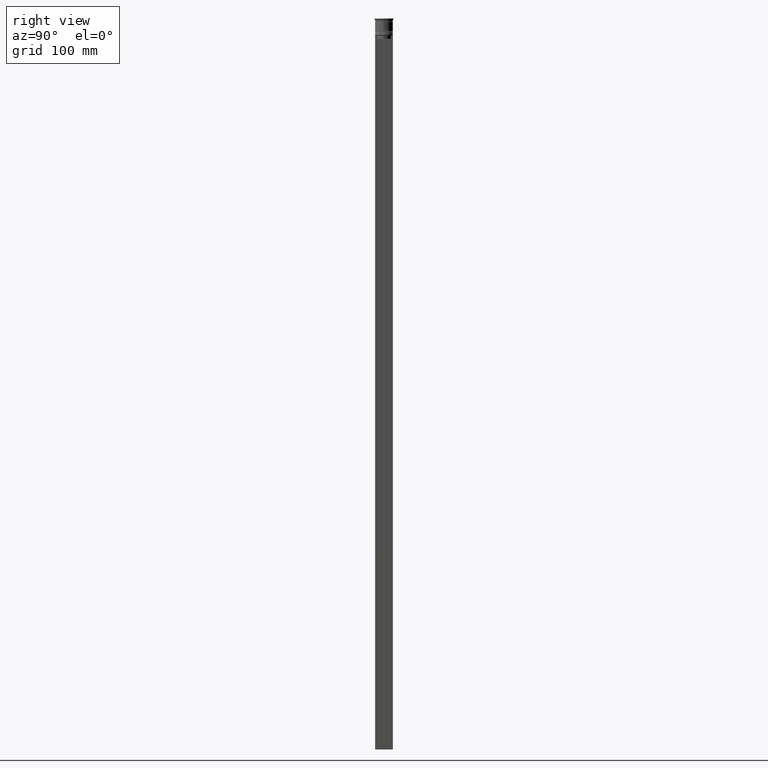
[diagram: clean part render]
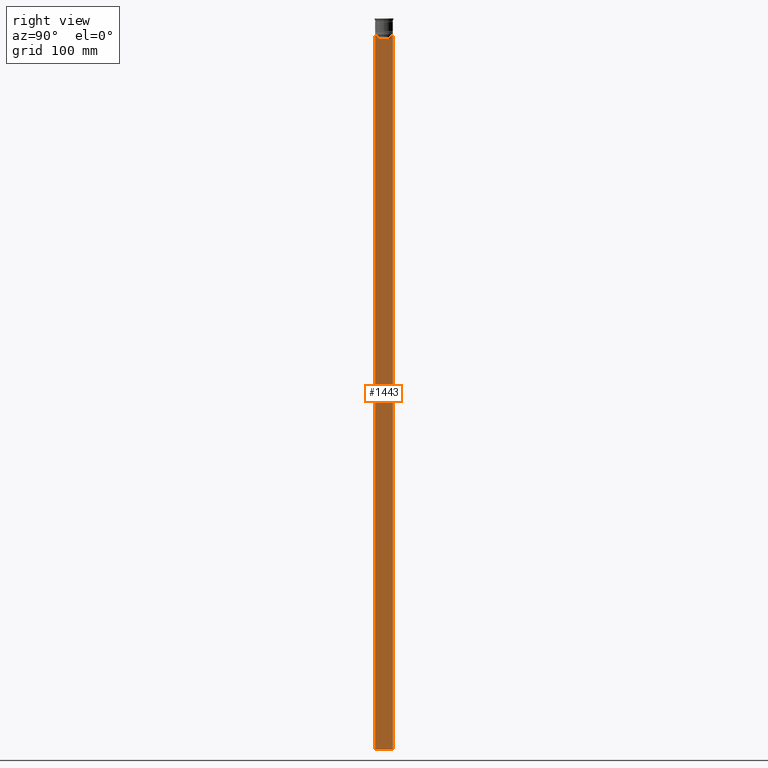
[diagram: same view with one face highlighted and labeled with its STEP entity id]
A machine part, right view. The second image highlights one B-rep face of the part: STEP entity #1443.
In plain terms, the highlighted planar face has unit normal (-1, 0, 0).
Its self-contained STEP definition (entity closure, byte-faithful):
#17 = VERTEX_POINT ( 'NONE', #523 ) ;
#36 = CARTESIAN_POINT ( 'NONE',  ( 0.5000000000000000000, -6.046019991840948293, -14.33335703538585726 ) ) ;
#78 = EDGE_CURVE ( 'NONE', #1040, #1679, #180, .T. ) ;
#89 = CARTESIAN_POINT ( 'NONE',  ( 0.5000000000000000000, 7.383088784512886527, -14.00000000000000178 ) ) ;
#110 = EDGE_CURVE ( 'NONE', #383, #2054, #2491, .T. ) ;
#126 = CARTESIAN_POINT ( 'NONE',  ( 0.5000000000000000000, -7.499999999999999112, -14.00000000000000178 ) ) ;
#174 = VERTEX_POINT ( 'NONE', #2133 ) ;
#176 = LINE ( 'NONE', #933, #2385 ) ;
#180 = B_SPLINE_CURVE_WITH_KNOTS ( 'NONE', 3,
 ( #587, #36, #2303, #559 ),
 .UNSPECIFIED., .F., .F.,
 ( 4, 4 ),
 ( 0.02765270321082434479, 0.02836198271238431559 ),
 .UNSPECIFIED. ) ;
#231 = EDGE_CURVE ( 'NONE', #2128, #2054, #1404, .T. ) ;
#235 = DIRECTION ( 'NONE',  ( -1.000000000000000000, 0.000000000000000000, 0.000000000000000000 ) ) ;
#259 = AXIS2_PLACEMENT_3D ( 'NONE', #1403, #235, #1455 ) ;
#311 = DIRECTION ( 'NONE',  ( 0.000000000000000000, -1.000000000000000000, 0.000000000000000000 ) ) ;
#327 = VECTOR ( 'NONE', #831, 1000.000000000000000 ) ;
#345 = EDGE_CURVE ( 'NONE', #1679, #2166, #654, .T. ) ;
#347 = ORIENTED_EDGE ( 'NONE', *, *, #1887, .T. ) ;
#353 = ORIENTED_EDGE ( 'NONE', *, *, #732, .T. ) ;
#359 = VERTEX_POINT ( 'NONE', #89 ) ;
#383 = VERTEX_POINT ( 'NONE', #1651 ) ;
#400 = ORIENTED_EDGE ( 'NONE', *, *, #1500, .T. ) ;
#433 = DIRECTION ( 'NONE',  ( 0.000000000000000000, 0.000000000000000000, -1.000000000000000000 ) ) ;
#441 = ORIENTED_EDGE ( 'NONE', *, *, #657, .T. ) ;
#452 = ORIENTED_EDGE ( 'NONE', *, *, #1108, .T. ) ;
#519 = EDGE_CURVE ( 'NONE', #1283, #17, #176, .T. ) ;
#523 = CARTESIAN_POINT ( 'NONE',  ( 0.5000000000000000000, -5.878775382679625849, -17.00000000000000000 ) ) ;
#559 = CARTESIAN_POINT ( 'NONE',  ( 0.5000000000000000000, -6.380438856379706536, -14.00000000000000178 ) ) ;
#587 = CARTESIAN_POINT ( 'NONE',  ( 0.5000000000000000000, -5.878775382679625849, -14.50000000000000000 ) ) ;
#613 = CARTESIAN_POINT ( 'NONE',  ( 0.5000000000000000000, -7.499999999999999112, -14.00000000000000178 ) ) ;
#654 = LINE ( 'NONE', #1050, #2107 ) ;
#657 = EDGE_CURVE ( 'NONE', #17, #1040, #1239, .T. ) ;
#669 = ORIENTED_EDGE ( 'NONE', *, *, #1127, .T. ) ;
#692 = VERTEX_POINT ( 'NONE', #1812 ) ;
#700 = CARTESIAN_POINT ( 'NONE',  ( 0.5000000000000000000, -7.499999999999999112, -14.00000000000000178 ) ) ;
#732 = EDGE_CURVE ( 'NONE', #2128, #359, #1289, .T. ) ;
#808 = VECTOR ( 'NONE', #433, 1000.000000000000000 ) ;
#813 = CARTESIAN_POINT ( 'NONE',  ( 0.5000000000000000000, 7.500000000000002665, 1.033296378372908997 ) ) ;
#831 = DIRECTION ( 'NONE',  ( -0.000000000000000000, -0.000000000000000000, 1.000000000000000000 ) ) ;
#872 = DIRECTION ( 'NONE',  ( 0.000000000000000000, 0.000000000000000000, -1.000000000000000000 ) ) ;
#923 = DIRECTION ( 'NONE',  ( 0.000000000000000000, -1.000000000000000000, 0.000000000000000000 ) ) ;
#933 = CARTESIAN_POINT ( 'NONE',  ( 0.5000000000000000000, 5.899999999999998579, -17.00000000000000000 ) ) ;
#993 = B_SPLINE_CURVE_WITH_KNOTS ( 'NONE', 3,
 ( #2210, #1048, #1434, #2200 ),
 .UNSPECIFIED., .F., .F.,
 ( 4, 4 ),
 ( 0.01087727669788152163, 0.01158556069794289788 ),
 .UNSPECIFIED. ) ;
#1037 = DIRECTION ( 'NONE',  ( 0.000000000000000000, -1.000000000000000000, 0.000000000000000000 ) ) ;
#1040 = VERTEX_POINT ( 'NONE', #1610 ) ;
#1048 = CARTESIAN_POINT ( 'NONE',  ( 0.5000000000000000000, 6.213239387491007015, -14.16668843563492430 ) ) ;
#1050 = CARTESIAN_POINT ( 'NONE',  ( 0.5000000000000000000, -7.499999999999999112, -14.00000000000000178 ) ) ;
#1059 = LINE ( 'NONE', #1835, #2270 ) ;
#1108 = EDGE_CURVE ( 'NONE', #174, #2066, #993, .T. ) ;
#1127 = EDGE_CURVE ( 'NONE', #2066, #1283, #1059, .T. ) ;
#1146 = ORIENTED_EDGE ( 'NONE', *, *, #1160, .T. ) ;
#1160 = EDGE_CURVE ( 'NONE', #2166, #692, #1697, .T. ) ;
#1174 = DIRECTION ( 'NONE',  ( 0.000000000000000000, 1.000000000000000000, 0.000000000000000000 ) ) ;
#1239 = LINE ( 'NONE', #2368, #327 ) ;
#1283 = VERTEX_POINT ( 'NONE', #1734 ) ;
#1289 = LINE ( 'NONE', #126, #2151 ) ;
#1296 = CARTESIAN_POINT ( 'NONE',  ( 0.5000000000000000000, 5.878775382679625849, -14.50000000000000000 ) ) ;
#1301 = DIRECTION ( 'NONE',  ( 0.000000000000000000, -1.000000000000000000, 0.000000000000000000 ) ) ;
#1306 = VECTOR ( 'NONE', #2366, 1000.000000000000000 ) ;
#1343 = VECTOR ( 'NONE', #1174, 1000.000000000000000 ) ;
#1403 = CARTESIAN_POINT ( 'NONE',  ( 0.5000000000000000000, -7.499999999999999112, 1.033296378372908997 ) ) ;
#1404 = LINE ( 'NONE', #813, #808 ) ;
#1434 = CARTESIAN_POINT ( 'NONE',  ( 0.5000000000000000000, 6.046020074006152711, -14.33335695351623151 ) ) ;
#1443 = ADVANCED_FACE ( 'NONE', ( #1632 ), #1981, .F. ) ;
#1444 = CARTESIAN_POINT ( 'NONE',  ( 0.5000000000000000000, -7.499999999999999112, 1.033296378372908997 ) ) ;
#1455 = DIRECTION ( 'NONE',  ( 0.000000000000000000, 0.000000000000000000, 1.000000000000000000 ) ) ;
#1500 = EDGE_CURVE ( 'NONE', #692, #383, #1795, .T. ) ;
#1603 = ORIENTED_EDGE ( 'NONE', *, *, #345, .T. ) ;
#1610 = CARTESIAN_POINT ( 'NONE',  ( 0.5000000000000000000, -5.878775382679625849, -14.50000000000000000 ) ) ;
#1623 = DIRECTION ( 'NONE',  ( 0.000000000000000000, -1.000000000000000000, 0.000000000000000000 ) ) ;
#1632 = FACE_OUTER_BOUND ( 'NONE', #2287, .T. ) ;
#1651 = CARTESIAN_POINT ( 'NONE',  ( 0.5000000000000000000, -7.499999999999999112, -614.0000000000000000 ) ) ;
#1679 = VERTEX_POINT ( 'NONE', #2277 ) ;
#1697 = LINE ( 'NONE', #700, #1992 ) ;
#1717 = ORIENTED_EDGE ( 'NONE', *, *, #78, .T. ) ;
#1721 = ORIENTED_EDGE ( 'NONE', *, *, #231, .F. ) ;
#1734 = CARTESIAN_POINT ( 'NONE',  ( 0.5000000000000000000, 5.878775382679625849, -17.00000000000000000 ) ) ;
#1775 = ORIENTED_EDGE ( 'NONE', *, *, #519, .T. ) ;
#1795 = LINE ( 'NONE', #1444, #1306 ) ;
#1805 = ORIENTED_EDGE ( 'NONE', *, *, #110, .T. ) ;
#1812 = CARTESIAN_POINT ( 'NONE',  ( 0.5000000000000000000, -7.499999999999999112, -14.00000000000000178 ) ) ;
#1835 = CARTESIAN_POINT ( 'NONE',  ( 0.5000000000000000000, 5.878775382679625849, 0.000000000000000000 ) ) ;
#1854 = CARTESIAN_POINT ( 'NONE',  ( 0.5000000000000000000, 7.500000000000002665, -14.00000000000000178 ) ) ;
#1878 = VECTOR ( 'NONE', #1037, 1000.000000000000000 ) ;
#1887 = EDGE_CURVE ( 'NONE', #359, #174, #2395, .T. ) ;
#1981 = PLANE ( 'NONE',  #259 ) ;
#1992 = VECTOR ( 'NONE', #311, 1000.000000000000000 ) ;
#2054 = VERTEX_POINT ( 'NONE', #2408 ) ;
#2066 = VERTEX_POINT ( 'NONE', #1296 ) ;
#2085 = CARTESIAN_POINT ( 'NONE',  ( 0.5000000000000000000, -7.383088784512886527, -14.00000000000000178 ) ) ;
#2106 = CARTESIAN_POINT ( 'NONE',  ( 0.5000000000000000000, -7.499999999999999112, -614.0000000000000000 ) ) ;
#2107 = VECTOR ( 'NONE', #1623, 1000.000000000000000 ) ;
#2128 = VERTEX_POINT ( 'NONE', #1854 ) ;
#2133 = CARTESIAN_POINT ( 'NONE',  ( 0.5000000000000000000, 6.380438856379706536, -14.00000000000000178 ) ) ;
#2151 = VECTOR ( 'NONE', #923, 1000.000000000000000 ) ;
#2166 = VERTEX_POINT ( 'NONE', #2085 ) ;
#2200 = CARTESIAN_POINT ( 'NONE',  ( 0.5000000000000000000, 5.878775382679625849, -14.50000000000000000 ) ) ;
#2210 = CARTESIAN_POINT ( 'NONE',  ( 0.5000000000000000000, 6.380438856379706536, -14.00000000000000178 ) ) ;
#2270 = VECTOR ( 'NONE', #872, 1000.000000000000000 ) ;
#2277 = CARTESIAN_POINT ( 'NONE',  ( 0.5000000000000000000, -6.380438856379706536, -14.00000000000000178 ) ) ;
#2287 = EDGE_LOOP ( 'NONE', ( #347, #452, #669, #1775, #441, #1717, #1603, #1146, #400, #1805, #1721, #353 ) ) ;
#2303 = CARTESIAN_POINT ( 'NONE',  ( 0.5000000000000000000, -6.213239311785844876, -14.16668851110870087 ) ) ;
#2366 = DIRECTION ( 'NONE',  ( 0.000000000000000000, 0.000000000000000000, -1.000000000000000000 ) ) ;
#2368 = CARTESIAN_POINT ( 'NONE',  ( 0.5000000000000000000, -5.878775382679625849, 0.000000000000000000 ) ) ;
#2385 = VECTOR ( 'NONE', #1301, 1000.000000000000000 ) ;
#2395 = LINE ( 'NONE', #613, #1878 ) ;
#2408 = CARTESIAN_POINT ( 'NONE',  ( 0.5000000000000000000, 7.500000000000002665, -614.0000000000000000 ) ) ;
#2491 = LINE ( 'NONE', #2106, #1343 ) ;